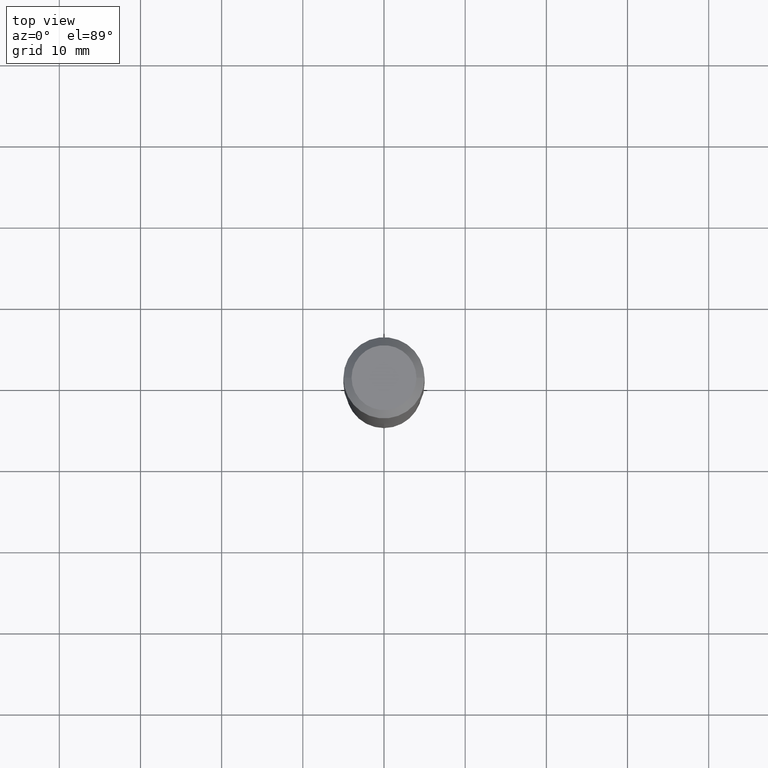
[diagram: clean part render]
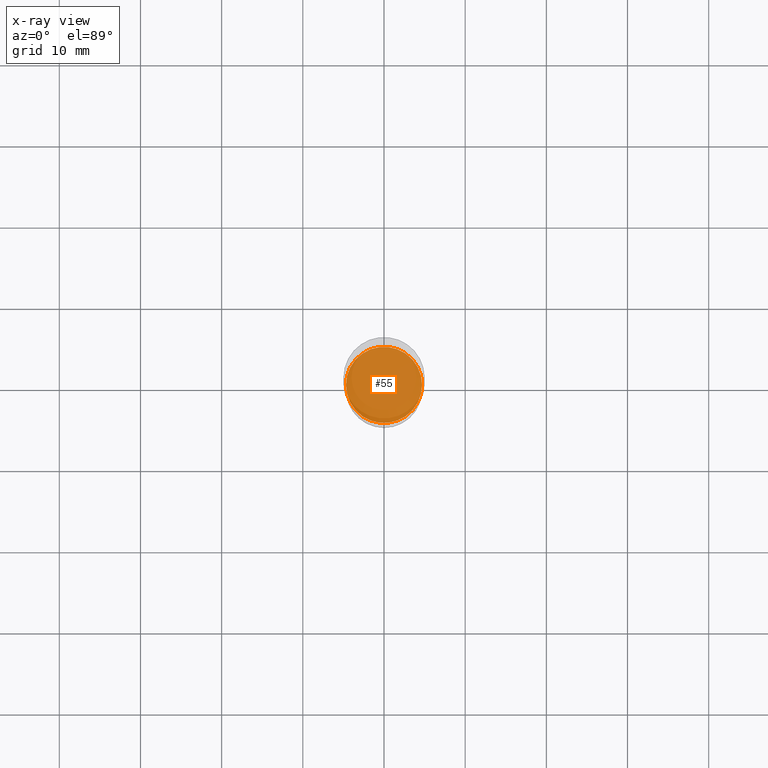
[diagram: x-ray — body ghosted, one internal face saturated and labeled with its STEP entity id]
A machine part, top view, then the same camera in x-ray: the body is ghosted and one INTERNAL B-rep face — a face not visible from any outside direction — is saturated and labeled: STEP entity #55.
In plain terms, the highlighted planar face has unit normal (-0, 0, 1).
Its self-contained STEP definition (entity closure, byte-faithful):
#10 = CARTESIAN_POINT ( 'NONE',  ( 4.948650676196241876E-29, -7.065361637282988500E-15, -2.023599999999999621 ) ) ;
#13 = EDGE_LOOP ( 'NONE', ( #87, #258 ) ) ;
#30 = AXIS2_PLACEMENT_3D ( 'NONE', #371, #34, #178 ) ;
#34 = DIRECTION ( 'NONE',  ( -2.438088387897960049E-29, 3.491481338843145188E-15, 1.000000000000000000 ) ) ;
#37 = DIRECTION ( 'NONE',  ( -2.445468806185136597E-29, 3.491481338843145583E-15, 1.000000000000000000 ) ) ;
#44 = VERTEX_POINT ( 'NONE', #69 ) ;
#49 = VERTEX_POINT ( 'NONE', #108 ) ;
#51 = DIRECTION ( 'NONE',  ( 1.000000000000000000, -6.982962677686265922E-15, 0.000000000000000000 ) ) ;
#55 = ADVANCED_FACE ( 'NONE', ( #252 ), #221, .F. ) ;
#69 = CARTESIAN_POINT ( 'NONE',  ( -0.1845499999999999363, -5.751405791263613253E-15, -2.023599999999999621 ) ) ;
#81 = CIRCLE ( 'NONE', #405, 0.1845499999999999363 ) ;
#87 = ORIENTED_EDGE ( 'NONE', *, *, #245, .F. ) ;
#108 = CARTESIAN_POINT ( 'NONE',  ( 0.1845499999999999363, -8.354067399449988978E-15, -2.023599999999999621 ) ) ;
#117 = DIRECTION ( 'NONE',  ( -2.445468806185136597E-29, 3.491481338843145583E-15, 1.000000000000000000 ) ) ;
#137 = CIRCLE ( 'NONE', #463, 0.1845499999999999363 ) ;
#178 = DIRECTION ( 'NONE',  ( 1.000000000000000000, -6.982962677686265922E-15, 4.876176775795935793E-29 ) ) ;
#217 = DIRECTION ( 'NONE',  ( 1.000000000000000000, -6.982962677686265922E-15, 0.000000000000000000 ) ) ;
#221 = PLANE ( 'NONE',  #30 ) ;
#245 = EDGE_CURVE ( 'NONE', #49, #44, #81, .T. ) ;
#252 = FACE_OUTER_BOUND ( 'NONE', #13, .T. ) ;
#258 = ORIENTED_EDGE ( 'NONE', *, *, #316, .F. ) ;
#316 = EDGE_CURVE ( 'NONE', #44, #49, #137, .T. ) ;
#336 = CARTESIAN_POINT ( 'NONE',  ( 4.948650676196241876E-29, -7.065361637282988500E-15, -2.023599999999999621 ) ) ;
#371 = CARTESIAN_POINT ( 'NONE',  ( 4.948650676196241876E-29, -7.065361637282988500E-15, -2.023599999999999621 ) ) ;
#405 = AXIS2_PLACEMENT_3D ( 'NONE', #10, #117, #51 ) ;
#463 = AXIS2_PLACEMENT_3D ( 'NONE', #336, #37, #217 ) ;